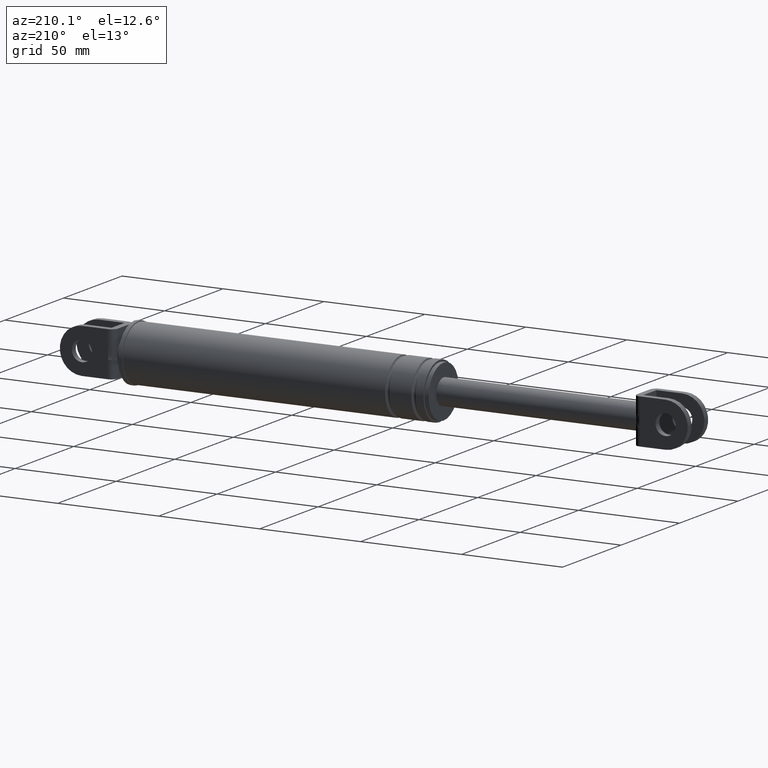
[diagram: clean part render]
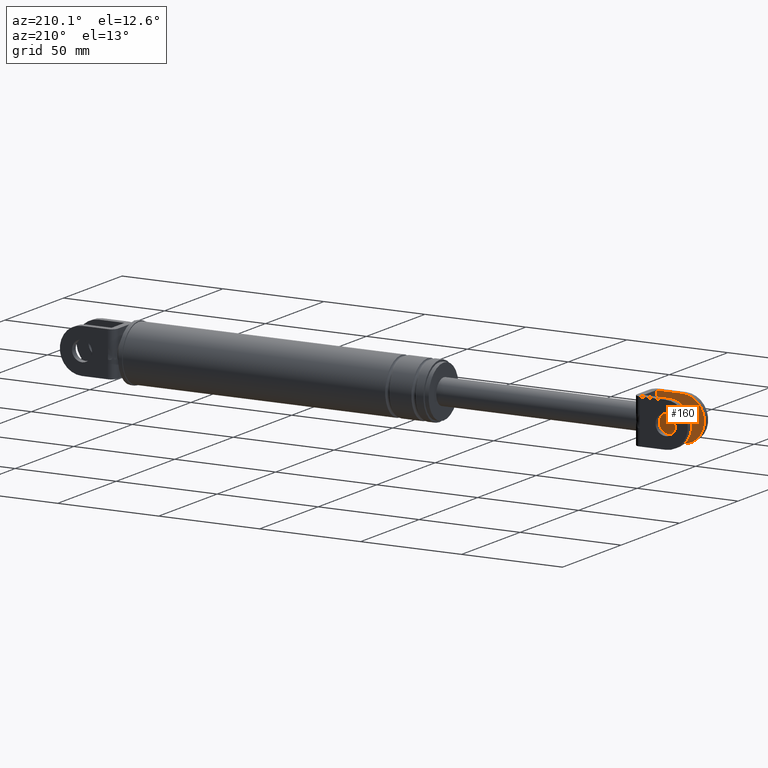
[diagram: same view with one face highlighted and labeled with its STEP entity id]
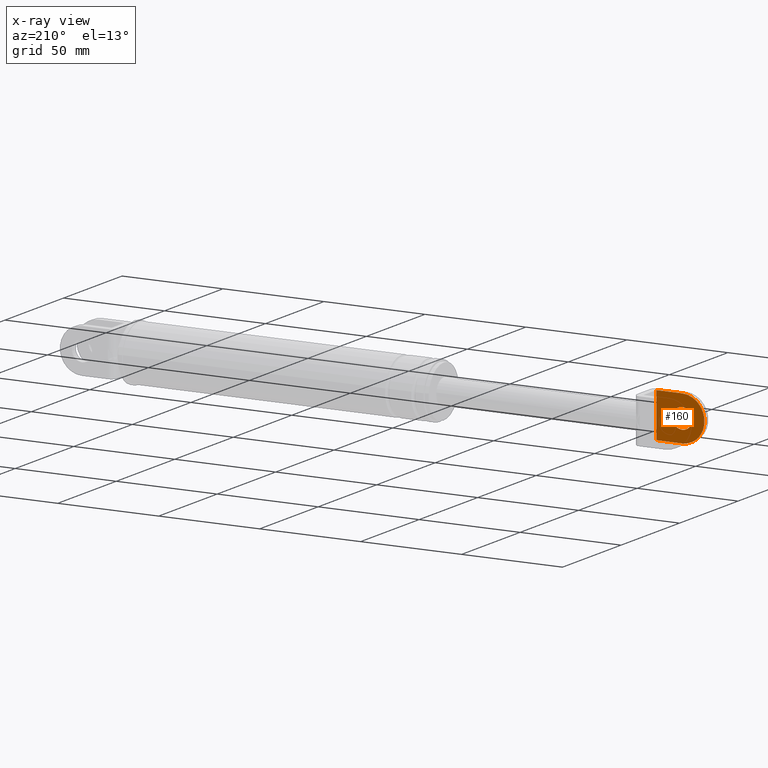
[diagram: x-ray of the same camera — body ghosted, the highlighted face saturated]
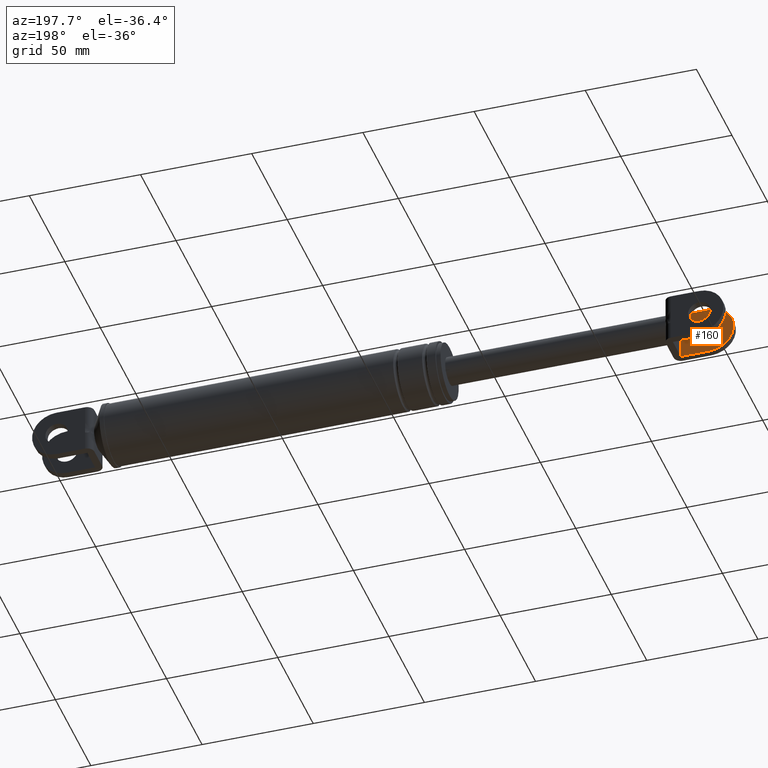
[diagram: same view with one face highlighted and labeled with its STEP entity id]
A machine part, auxiliary view. The second image highlights one B-rep face of the part: STEP entity #160.
The next image is the same camera in x-ray: the body ghosted, the highlighted face saturated — about 0% of this face is hidden behind the body in this view.
A second angle (auxiliary view) of the same face is appended — the face is thin or edge-on in the first view.
In plain terms, the highlighted planar face has unit normal (0, 1, 0).
Its self-contained STEP definition (entity closure, byte-faithful):
#160=ADVANCED_FACE('',(#665,#666),#664,.T.);
#664=PLANE('',#1317);
#665=FACE_OUTER_BOUND('',#1318,.T.);
#666=FACE_BOUND('',#1319,.T.);
#1314=CARTESIAN_POINT('',(4.64586152579E+001,-5.50000000000E+000,1.78119381208E+002));
#1315=DIRECTION('',(0.00000000000E+000,1.00000000000E+000,0.00000000000E+000));
#1316=DIRECTION('',(0.00000000000E+000,0.00000000000E+000,1.00000000000E+000));
#1317=AXIS2_PLACEMENT_3D('',#1314,#1315,#1316);
#1318=EDGE_LOOP('',(#1625,#1626,#1627,#1628));
#1319=EDGE_LOOP('',(#1629,#1630));
#1625=ORIENTED_EDGE('',*,*,#1835,.F.);
#1626=ORIENTED_EDGE('',*,*,#1836,.T.);
#1627=ORIENTED_EDGE('',*,*,#1837,.T.);
#1628=ORIENTED_EDGE('',*,*,#1838,.T.);
#1629=ORIENTED_EDGE('',*,*,#1839,.F.);
#1630=ORIENTED_EDGE('',*,*,#1840,.F.);
#1835=EDGE_CURVE('',#2710,#2711,#2712,.T.);
#1836=EDGE_CURVE('',#2710,#2718,#2719,.T.);
#1837=EDGE_CURVE('',#2718,#2725,#2726,.T.);
#1838=EDGE_CURVE('',#2725,#2711,#2732,.T.);
#1839=EDGE_CURVE('',#2738,#2739,#2740,.T.);
#1840=EDGE_CURVE('',#2739,#2738,#2746,.T.);
#2710=VERTEX_POINT('',#3450);
#2711=VERTEX_POINT('',#3451);
#2712=LINE('',#3452,#3453);
#2718=VERTEX_POINT('',#3455);
#2719=CIRCLE('',#3459,1.10000000000E+001);
#2725=VERTEX_POINT('',#3460);
#2726=LINE('',#3461,#3462);
#2732=LINE('',#3464,#3465);
#2738=VERTEX_POINT('',#3467);
#2739=VERTEX_POINT('',#3468);
#2740=CIRCLE('',#3472,5.00000000000E+000);
#2746=CIRCLE('',#3476,5.00000000000E+000);
#3450=CARTESIAN_POINT('',(5.98386145980E+001,-5.50000000000E+000,1.80319381208E+002));
#3451=CARTESIAN_POINT('',(7.26386185579E+001,-5.50000000000E+000,1.80319381208E+002));
#3452=CARTESIAN_POINT('',(5.98386145980E+001,-5.50000000000E+000,1.80319381208E+002));
#3453=VECTOR('',#3454,1.28000039599E+001);
#3454=DIRECTION('',(1.00000000000E+000,0.00000000000E+000,0.00000000000E+000));
#3455=CARTESIAN_POINT('',(5.98386145980E+001,-5.50000000000E+000,2.02319381208E+002));
#3456=CARTESIAN_POINT('',(5.98386155579E+001,-5.50000000000E+000,1.91319381208E+002));
#3457=DIRECTION('',(0.00000000000E+000,1.00000000000E+000,-0.00000000000E+000));
#3458=DIRECTION('',(-0.00000000000E+000,-0.00000000000E+000,-1.00000000000E+000));
#3459=AXIS2_PLACEMENT_3D('',#3456,#3457,#3458);
#3460=CARTESIAN_POINT('',(7.26386185579E+001,-5.50000000000E+000,2.02319381208E+002));
#3461=CARTESIAN_POINT('',(5.98386145980E+001,-5.50000000000E+000,2.02319381208E+002));
#3462=VECTOR('',#3463,1.28000039599E+001);
#3463=DIRECTION('',(1.00000000000E+000,0.00000000000E+000,0.00000000000E+000));
#3464=CARTESIAN_POINT('',(7.26386185579E+001,-5.50000000000E+000,2.02319381208E+002));
#3465=VECTOR('',#3466,2.20000000000E+001);
#3466=DIRECTION('',(0.00000000000E+000,0.00000000000E+000,-1.00000000000E+000));
#3467=CARTESIAN_POINT('',(5.98386155579E+001,-5.50000000000E+000,1.86319381208E+002));
#3468=CARTESIAN_POINT('',(5.98386155579E+001,-5.50000000000E+000,1.96319381208E+002));
#3469=CARTESIAN_POINT('',(5.98386155579E+001,-5.50000000000E+000,1.91319381208E+002));
#3470=DIRECTION('',(0.00000000000E+000,1.00000000000E+000,0.00000000000E+000));
#3471=DIRECTION('',(-1.22460635382E-016,0.00000000000E+000,1.00000000000E+000));
#3472=AXIS2_PLACEMENT_3D('',#3469,#3470,#3471);
#3473=CARTESIAN_POINT('',(5.98386155579E+001,-5.50000000000E+000,1.91319381208E+002));
#3474=DIRECTION('',(0.00000000000E+000,1.00000000000E+000,0.00000000000E+000));
#3475=DIRECTION('',(-1.22460635382E-016,0.00000000000E+000,1.00000000000E+000));
#3476=AXIS2_PLACEMENT_3D('',#3473,#3474,#3475);